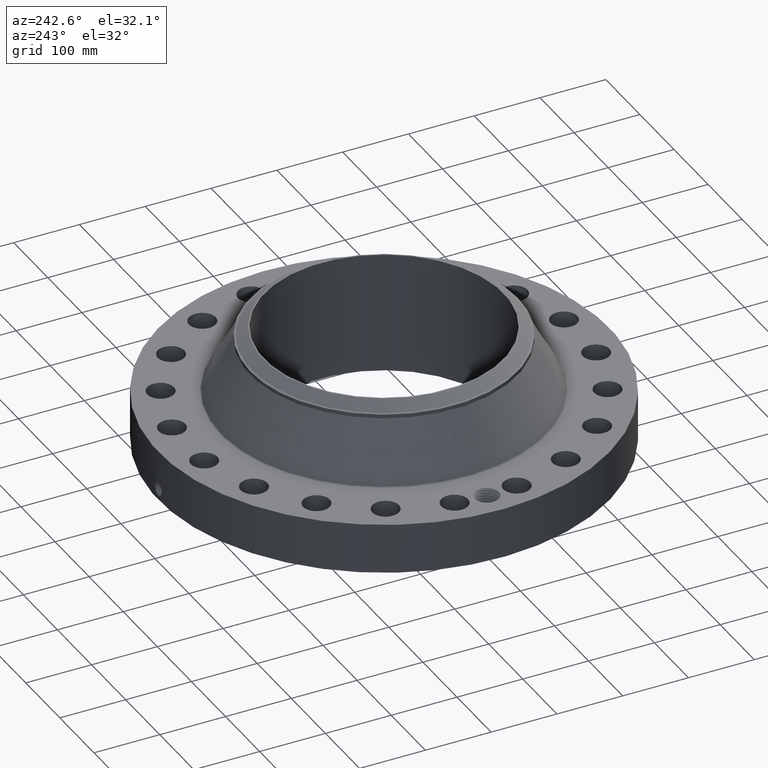
[diagram: clean part render]
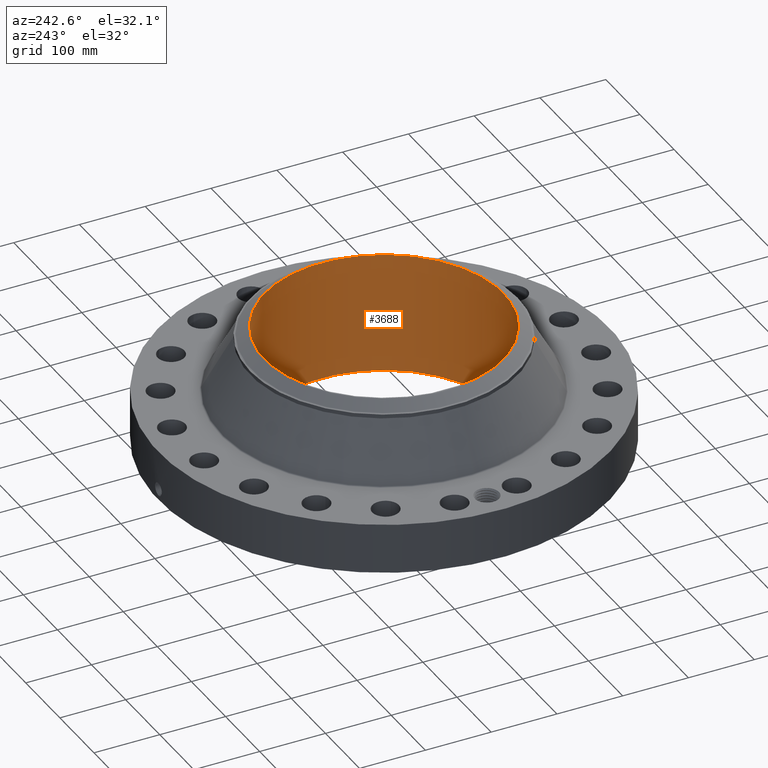
[diagram: same view with one face highlighted and labeled with its STEP entity id]
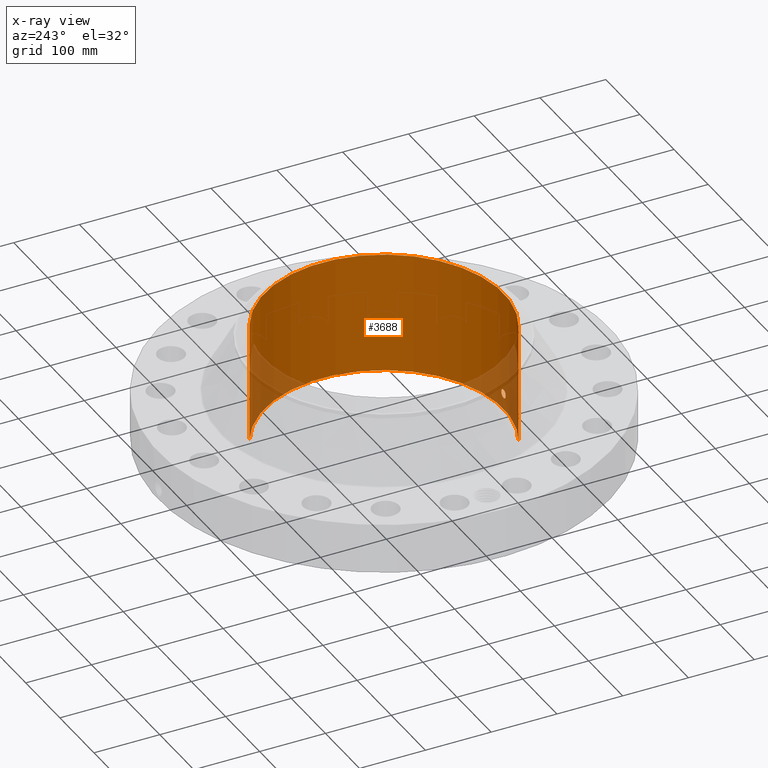
[diagram: x-ray of the same camera — body ghosted, the highlighted face saturated]
A machine part, auxiliary view. The second image highlights one B-rep face of the part: STEP entity #3688.
The next image is the same camera in x-ray: the body ghosted, the highlighted face saturated — about 12% of this face is hidden behind the body in this view.
In plain terms, the highlighted cylindrical surface (partial cylindrical patch) has radius 181.762 mm, axis along (0, 0, -1).
Its self-contained STEP definition (entity closure, byte-faithful):
#2876=AXIS2_PLACEMENT_3D('Circle Axis2P3D',#2874,#2875,$) ;
#3619=AXIS2_PLACEMENT_3D('Cylinder Axis2P3D',#3616,#3617,#3618) ;
#3623=AXIS2_PLACEMENT_3D('Circle Axis2P3D',#3621,#3622,$) ;
#2874=CARTESIAN_POINT('Axis2P3D Location',(0.,0.,0.)) ;
#2878=CARTESIAN_POINT('Vertex',(3.43076915427,6.27998081291,-4.363963259E-014)) ;
#2880=CARTESIAN_POINT('Vertex',(-3.43076915427,-6.27998081291,-4.363963259E-014)) ;
#3616=CARTESIAN_POINT('Axis2P3D Location',(0.,0.,3.62500000001)) ;
#3621=CARTESIAN_POINT('Axis2P3D Location',(0.,0.,7.25000000003)) ;
#3625=CARTESIAN_POINT('Vertex',(3.43076915427,6.27998081291,7.25000000003)) ;
#3627=CARTESIAN_POINT('Vertex',(-3.43076915427,-6.27998081291,7.25000000003)) ;
#3630=CARTESIAN_POINT('Line Origine',(3.43076915427,6.27998081291,3.62500000001)) ;
#3635=CARTESIAN_POINT('Line Origine',(-3.43076915427,-6.27998081291,3.62500000001)) ;
#3647=CARTESIAN_POINT('Control Point',(0.219395640473,-7.15263598636,0.820143615352)) ;
#3648=CARTESIAN_POINT('Control Point',(0.194443499896,-7.15340135326,0.774469028395)) ;
#3649=CARTESIAN_POINT('Control Point',(0.15760731947,-7.15442233399,0.735291091251)) ;
#3650=CARTESIAN_POINT('Control Point',(0.111113293207,-7.1554151886,0.706759126349)) ;
#3651=CARTESIAN_POINT('Control Point',(0.0336801603263,-7.15620517496,0.684118405591)) ;
#3652=CARTESIAN_POINT('Control Point',(-0.0446635560719,-7.15593226857,0.691942597243)) ;
#3653=CARTESIAN_POINT('Control Point',(-0.0702911901228,-7.15572040327,0.697953868895)) ;
#3654=CARTESIAN_POINT('Control Point',(-0.143944688214,-7.1547840793,0.725781070609)) ;
#3655=CARTESIAN_POINT('Control Point',(-0.203230521571,-7.1532555535,0.780486983704)) ;
#3656=CARTESIAN_POINT('Control Point',(-0.232198792821,-7.15225278145,0.82671987381)) ;
#3657=CARTESIAN_POINT('Control Point',(-0.255838659825,-7.15142813357,0.904869056747)) ;
#3658=CARTESIAN_POINT('Control Point',(-0.248286060269,-7.15169137865,0.984239798354)) ;
#3659=CARTESIAN_POINT('Control Point',(-0.242052205784,-7.15191182455,1.01080754142)) ;
#3660=CARTESIAN_POINT('Control Point',(-0.23231749098,-7.15223962931,1.03620309596)) ;
#3661=CARTESIAN_POINT('Control Point',(-0.219395640473,-7.15263598636,1.05985638466)) ;
#3662=CARTESIAN_POINT('Vertex',(0.219395640473,-7.15263598636,0.820143615352)) ;
#3664=CARTESIAN_POINT('Vertex',(-0.219395640473,-7.15263598636,1.05985638466)) ;
#3668=CARTESIAN_POINT('Control Point',(-0.219395640473,-7.15263598636,1.05985638466)) ;
#3669=CARTESIAN_POINT('Control Point',(-0.194443499884,-7.15340135326,1.10553097163)) ;
#3670=CARTESIAN_POINT('Control Point',(-0.157607319433,-7.15442233399,1.14470890879)) ;
#3671=CARTESIAN_POINT('Control Point',(-0.111113293254,-7.1554151886,1.17324087365)) ;
#3672=CARTESIAN_POINT('Control Point',(-0.0336801603484,-7.15620517496,1.19588159442)) ;
#3673=CARTESIAN_POINT('Control Point',(0.0446635560757,-7.15593226857,1.18805740276)) ;
#3674=CARTESIAN_POINT('Control Point',(0.0702911901259,-7.15572040327,1.18204613111)) ;
#3675=CARTESIAN_POINT('Control Point',(0.143944688201,-7.1547840793,1.1542189294)) ;
#3676=CARTESIAN_POINT('Control Point',(0.203230521547,-7.1532555535,1.09951301632)) ;
#3677=CARTESIAN_POINT('Control Point',(0.232198792833,-7.15225278145,1.05328012616)) ;
#3678=CARTESIAN_POINT('Control Point',(0.255838659811,-7.15142813357,0.975130943285)) ;
#3679=CARTESIAN_POINT('Control Point',(0.248286060278,-7.15169137865,0.895760201742)) ;
#3680=CARTESIAN_POINT('Control Point',(0.242052205751,-7.15191182455,0.869192458503)) ;
#3681=CARTESIAN_POINT('Control Point',(0.232317490958,-7.15223962931,0.843796904006)) ;
#3682=CARTESIAN_POINT('Control Point',(0.219395640473,-7.15263598636,0.820143615352)) ;
#2875=DIRECTION('Axis2P3D Direction',(0.,0.,-0.0393700787402)) ;
#3617=DIRECTION('Axis2P3D Direction',(0.,0.,-0.0393700787402)) ;
#3618=DIRECTION('Axis2P3D XDirection',(-0.0188750212049,-0.0345504945626,0.)) ;
#3622=DIRECTION('Axis2P3D Direction',(0.,0.,-0.0393700787402)) ;
#3631=DIRECTION('Vector Direction',(0.,0.,-0.0393700787402)) ;
#3636=DIRECTION('Vector Direction',(0.,0.,-0.0393700787402)) ;
#3632=VECTOR('Line Direction',#3631,0.0393700787402) ;
#3637=VECTOR('Line Direction',#3636,0.0393700787402) ;
#3641=ORIENTED_EDGE('',*,*,#3629,.F.) ;
#3642=ORIENTED_EDGE('',*,*,#3634,.T.) ;
#3643=ORIENTED_EDGE('',*,*,#2882,.T.) ;
#3644=ORIENTED_EDGE('',*,*,#3639,.F.) ;
#3685=ORIENTED_EDGE('',*,*,#3666,.F.) ;
#3686=ORIENTED_EDGE('',*,*,#3683,.F.) ;
#3687=FACE_BOUND('',#3684,.T.) ;
#3688=ADVANCED_FACE('PartBody',(#3645,#3687),#3620,.F.) ;
#3646=B_SPLINE_CURVE_WITH_KNOTS('',5,(#3647,#3648,#3649,#3650,#3651,#3652,#3653,#3654,#3655,#3656,#3657,#3658,#3659,#3660,#3661),.UNSPECIFIED.,.F.,.U.,(6,3,3,3,6),(0.,9.34872352994,14.0226751785,23.3726987653,28.2140793077),.UNSPECIFIED.) ;
#3667=B_SPLINE_CURVE_WITH_KNOTS('',5,(#3668,#3669,#3670,#3671,#3672,#3673,#3674,#3675,#3676,#3677,#3678,#3679,#3680,#3681,#3682),.UNSPECIFIED.,.F.,.U.,(6,3,3,3,6),(0.,9.34872353454,14.0226751831,23.3726987669,28.2140793011),.UNSPECIFIED.) ;
#2877=CIRCLE('generated circle',#2876,7.15600000003) ;
#3624=CIRCLE('generated circle',#3623,7.15600000003) ;
#3620=CYLINDRICAL_SURFACE('generated cylinder',#3619,7.15600000003) ;
#2882=EDGE_CURVE('',#2879,#2881,#2877,.T.) ;
#3629=EDGE_CURVE('',#3626,#3628,#3624,.T.) ;
#3634=EDGE_CURVE('',#3626,#2879,#3633,.T.) ;
#3639=EDGE_CURVE('',#3628,#2881,#3638,.T.) ;
#3666=EDGE_CURVE('',#3663,#3665,#3646,.T.) ;
#3683=EDGE_CURVE('',#3665,#3663,#3667,.T.) ;
#3640=EDGE_LOOP('',(#3641,#3642,#3643,#3644)) ;
#3684=EDGE_LOOP('',(#3685,#3686)) ;
#3645=FACE_OUTER_BOUND('',#3640,.T.) ;
#3633=LINE('Line',#3630,#3632) ;
#3638=LINE('Line',#3635,#3637) ;
#2879=VERTEX_POINT('',#2878) ;
#2881=VERTEX_POINT('',#2880) ;
#3626=VERTEX_POINT('',#3625) ;
#3628=VERTEX_POINT('',#3627) ;
#3663=VERTEX_POINT('',#3662) ;
#3665=VERTEX_POINT('',#3664) ;